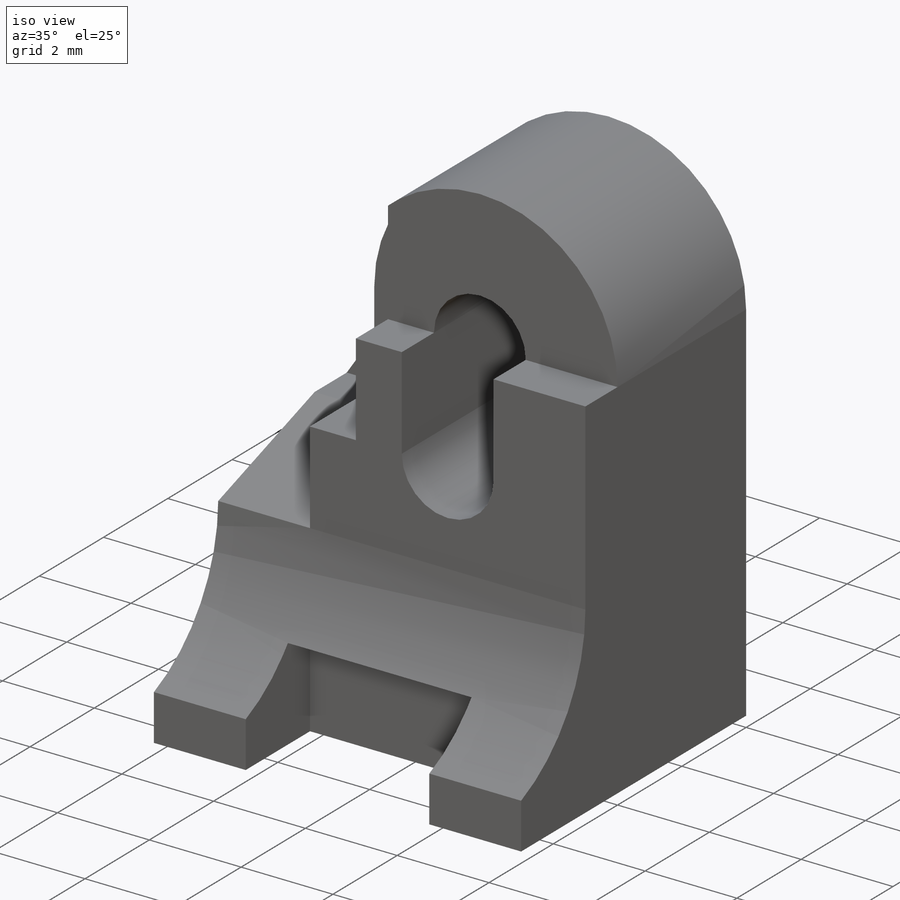
[diagram: iso view]
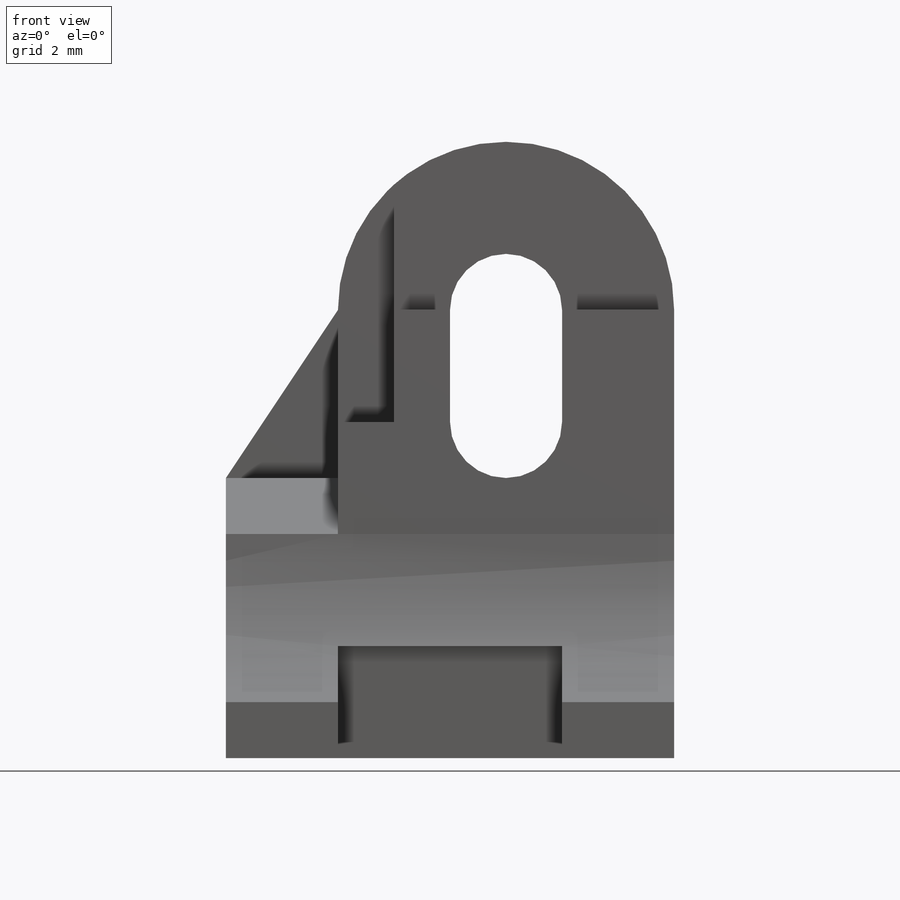
[diagram: front view]
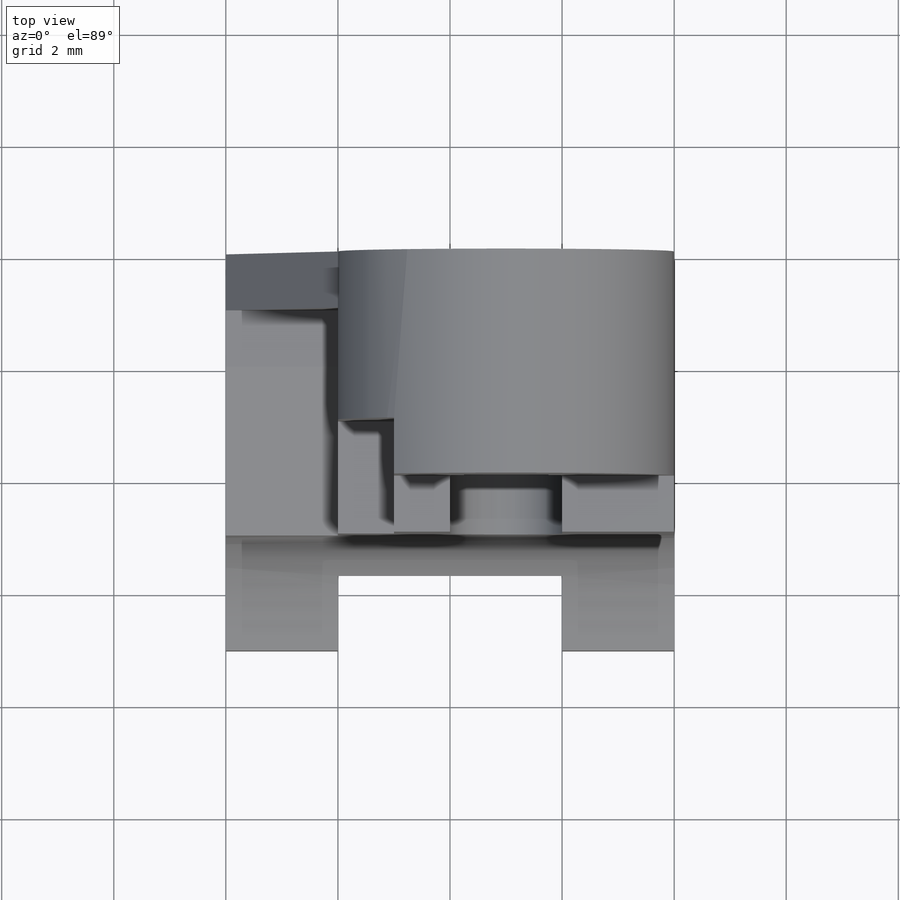
[diagram: top view]
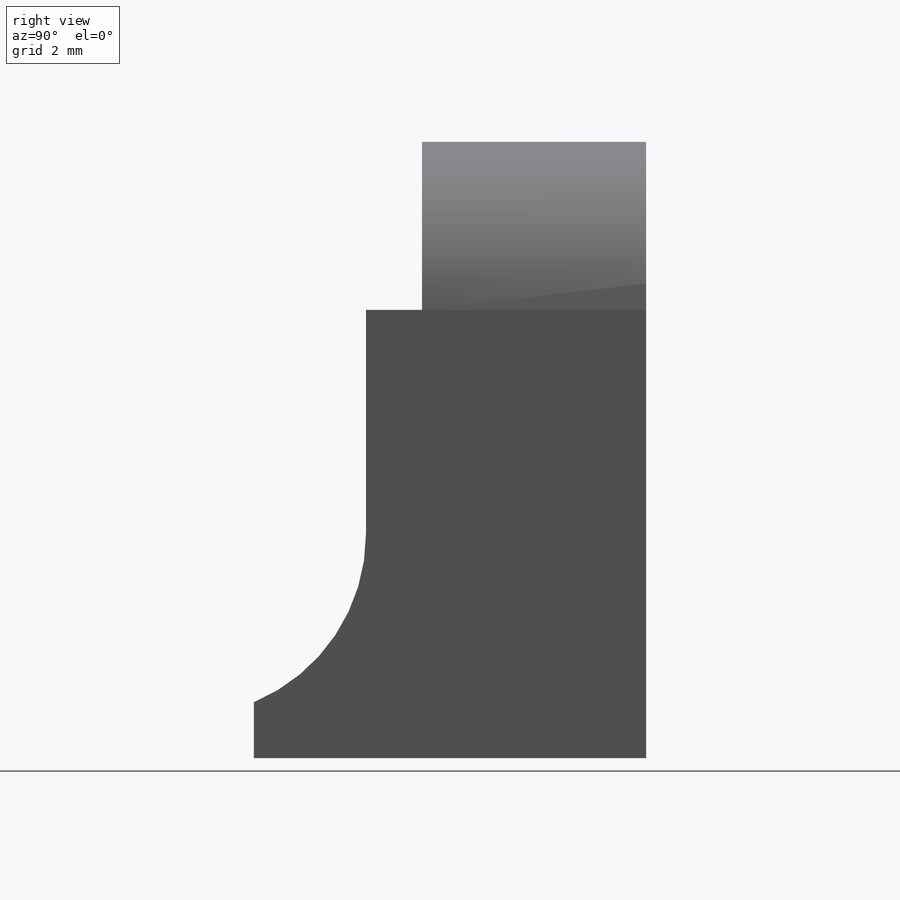
[diagram: right view]
SOLIDWORKS PART (.sldprt)
format: sldprt  version: not decoded by parser v0  size: 261,632 bytes
history: native  units: mm
features: sketch x7, extrude x4, cut_extrude x3, material x1 (+13 scaffold rows collapsed)
feature tree (28):
  scaffold x13  (default folders/planes/origin — collapsed)
  material  "Material <not specified>"
  sketch  "Sketch1"  dims[c1.D7=1.0mm c1.D1=4.0mm c1.D2=8.0mm c1.D3=4.0mm c1.D4=4.0mm c1.D5=2.0mm c1.D6=1.0mm c2.D7=2.0mm c2.D8=6.0mm]
  extrude  "Boss-Extrude2"  Depth=5mm
  sketch  "Sketch2"  dims[D1=1.0mm D2=2.0mm]
  extrude  "Boss-Extrude3"  Depth=8mm
  sketch  "Sketch4"  dims[D1=2.0mm D2=2.0mm D3=2.0mm]
  cut_extrude  "Cut-Extrude2"  Depth=2mm
  sketch  "Sketch5"
  cut_extrude  "Cut-Extrude3"  Depth=1mm
  sketch  "Sketch6"  dims[D1=2.0mm D2=1.0mm]
  cut_extrude  "Cut-Extrude4"  Depth=2mm
  sketch  "Sketch7"  dims[D1=1.0mm]
  extrude  "Boss-Extrude4"  Depth=1mm
  sketch  "Sketch8"  dims[D1=1.0mm D2=1.0mm]
  extrude  "Boss-Extrude5"  Depth=2mm
decode coverage: 13 of 14 modeling features carry decoded parameters
note: suppression state not decoded; provenance and decode notes live in map.json
